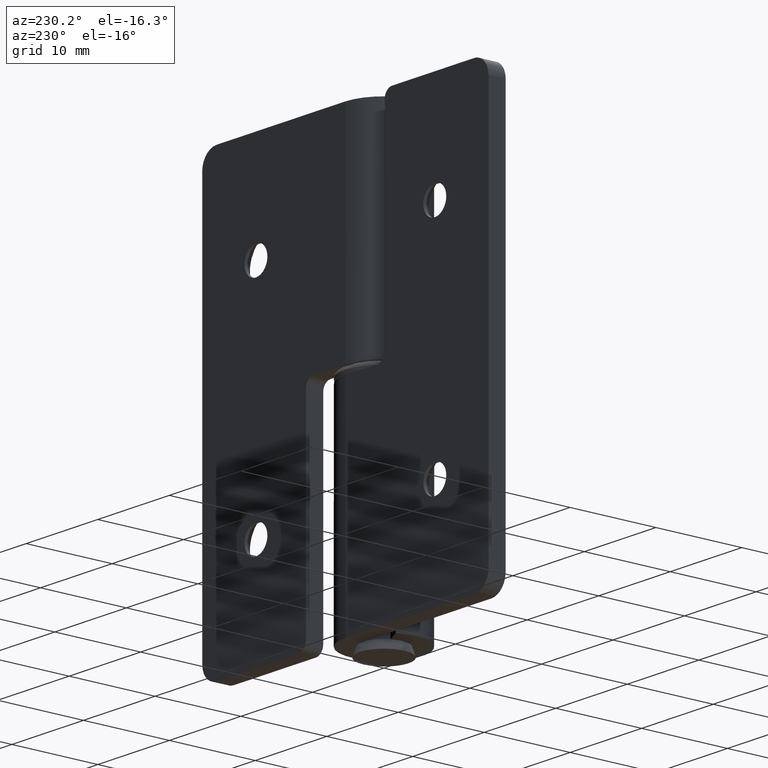
[diagram: clean part render]
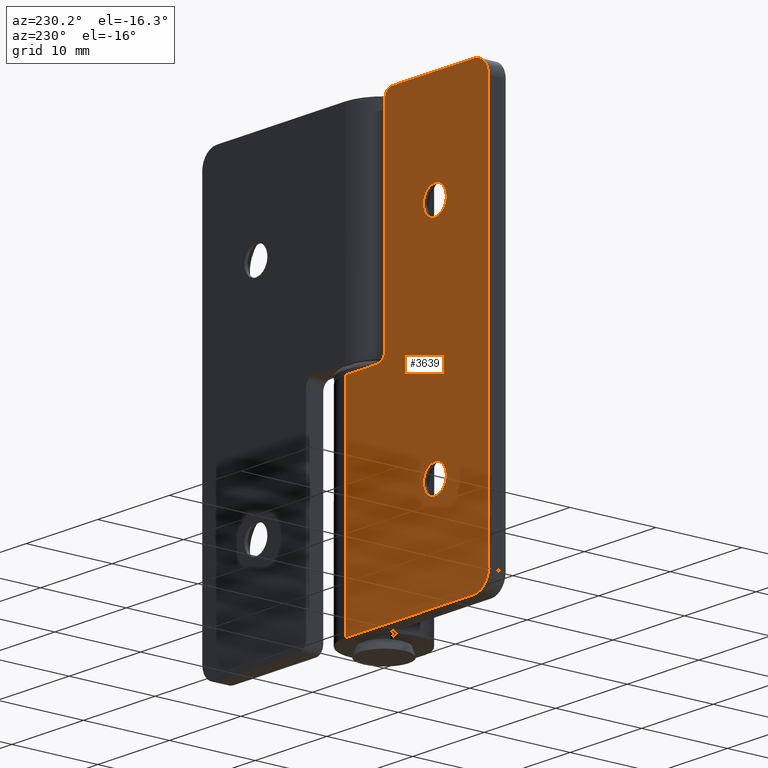
[diagram: same view with one face highlighted and labeled with its STEP entity id]
A machine part, auxiliary view. The second image highlights one B-rep face of the part: STEP entity #3639.
In plain terms, the highlighted face is a freeform B-spline surface patch.
Its self-contained STEP definition (entity closure, byte-faithful):
#2674=CARTESIAN_POINT('',(-10.902984322548001,4.499999999995415,38.097677663335922));
#2675=VERTEX_POINT('',#2674);
#2681=CARTESIAN_POINT('',(-12.500000000009100,4.499999999995415,36.400000000008973));
#2682=VERTEX_POINT('',#2681);
#2683=CARTESIAN_POINT('',(-10.902984322547995,4.499999999995416,38.097677663335915));
#2684=CARTESIAN_POINT('',(-10.900000000018061,4.499999999995415,38.048884421317929));
#2685=CARTESIAN_POINT('',(-10.900000000018069,4.499999999995415,38.0));
#2686=CARTESIAN_POINT('',(-10.900000000018068,4.499999999995415,36.400000000008966));
#2687=CARTESIAN_POINT('',(-12.500000000009100,4.499999999995415,36.400000000008973));
#2695=(BOUNDED_CURVE()B_SPLINE_CURVE(2,(#2683,#2684,#2685,#2686,#2687),.UNSPECIFIED.,.F.,.U.)B_SPLINE_CURVE_WITH_KNOTS((3,2,3),(0.239332962233250,0.250000000000000,0.500000000000000),.UNSPECIFIED.)CURVE()GEOMETRIC_REPRESENTATION_ITEM()RATIONAL_B_SPLINE_CURVE((0.976072041654518,0.987502787893168,1.0,0.707106781186548,1.0))REPRESENTATION_ITEM(''));
#2696=EDGE_CURVE('',#2675,#2682,#2695,.T.);
#2698=CARTESIAN_POINT('',(-14.097015677470200,4.499999999995415,37.902322336664092));
#2699=VERTEX_POINT('',#2698);
#2700=CARTESIAN_POINT('',(-12.500000000009100,4.499999999995415,36.400000000008973));
#2701=CARTESIAN_POINT('',(-14.005129706973579,4.499999999995415,36.400000000008973));
#2702=CARTESIAN_POINT('',(-14.097015677470203,4.499999999995415,37.902322336664085));
#2710=(BOUNDED_CURVE()B_SPLINE_CURVE(2,(#2700,#2701,#2702),.UNSPECIFIED.,.F.,.U.)B_SPLINE_CURVE_WITH_KNOTS((3,3),(0.500000000000000,0.739332962233249),.UNSPECIFIED.)CURVE()GEOMETRIC_REPRESENTATION_ITEM()RATIONAL_B_SPLINE_CURVE((1.0,0.719603993293381,0.976072041654515))REPRESENTATION_ITEM(''));
#2711=EDGE_CURVE('',#2682,#2699,#2710,.T.);
#2744=CARTESIAN_POINT('',(-12.500000000009100,4.499999999995415,39.599999999991027));
#2745=VERTEX_POINT('',#2744);
#2746=CARTESIAN_POINT('',(-14.097015677470202,4.499999999995415,37.902322336664085));
#2747=CARTESIAN_POINT('',(-14.100000000000142,4.499999999995415,37.951115578682078));
#2748=CARTESIAN_POINT('',(-14.100000000000140,4.499999999995415,38.0));
#2749=CARTESIAN_POINT('',(-14.100000000000136,4.499999999995415,39.599999999991041));
#2750=CARTESIAN_POINT('',(-12.500000000009100,4.499999999995415,39.599999999991027));
#2758=(BOUNDED_CURVE()B_SPLINE_CURVE(2,(#2746,#2747,#2748,#2749,#2750),.UNSPECIFIED.,.F.,.U.)B_SPLINE_CURVE_WITH_KNOTS((3,2,3),(0.739332962233250,0.750000000000000,1.0),.UNSPECIFIED.)CURVE()GEOMETRIC_REPRESENTATION_ITEM()RATIONAL_B_SPLINE_CURVE((0.976072041654517,0.987502787893168,1.0,0.707106781186548,1.0))REPRESENTATION_ITEM(''));
#2759=EDGE_CURVE('',#2699,#2745,#2758,.T.);
#2761=CARTESIAN_POINT('',(-12.500000000009100,4.499999999995415,39.599999999991027));
#2762=CARTESIAN_POINT('',(-10.994870293044611,4.499999999995415,39.599999999991034));
#2763=CARTESIAN_POINT('',(-10.902984322547995,4.499999999995416,38.097677663335915));
#2771=(BOUNDED_CURVE()B_SPLINE_CURVE(2,(#2761,#2762,#2763),.UNSPECIFIED.,.F.,.U.)B_SPLINE_CURVE_WITH_KNOTS((3,3),(0.0,0.239332962233250),.UNSPECIFIED.)CURVE()GEOMETRIC_REPRESENTATION_ITEM()RATIONAL_B_SPLINE_CURVE((1.0,0.719603993293379,0.976072041654518))REPRESENTATION_ITEM(''));
#2772=EDGE_CURVE('',#2745,#2675,#2771,.T.);
#3010=CARTESIAN_POINT('',(-10.902984322547921,4.499999999995415,12.097677663335910));
#3011=VERTEX_POINT('',#3010);
#3017=CARTESIAN_POINT('',(-12.500000000009020,4.499999999995415,10.400000000008960));
#3018=VERTEX_POINT('',#3017);
#3019=CARTESIAN_POINT('',(-10.902984322547923,4.499999999995415,12.097677663335913));
#3020=CARTESIAN_POINT('',(-10.900000000017991,4.499999999995415,12.048884421317931));
#3021=CARTESIAN_POINT('',(-10.900000000017990,4.499999999995415,12.0));
#3022=CARTESIAN_POINT('',(-10.900000000017986,4.499999999995415,10.400000000008964));
#3023=CARTESIAN_POINT('',(-12.500000000009020,4.499999999995415,10.400000000008960));
#3031=(BOUNDED_CURVE()B_SPLINE_CURVE(2,(#3019,#3020,#3021,#3022,#3023),.UNSPECIFIED.,.F.,.U.)B_SPLINE_CURVE_WITH_KNOTS((3,2,3),(0.239332962233251,0.250000000000000,0.500000000000000),.UNSPECIFIED.)CURVE()GEOMETRIC_REPRESENTATION_ITEM()RATIONAL_B_SPLINE_CURVE((0.976072041654518,0.987502787893168,1.0,0.707106781186548,1.0))REPRESENTATION_ITEM(''));
#3032=EDGE_CURVE('',#3011,#3018,#3031,.T.);
#3034=CARTESIAN_POINT('',(-14.097015677470131,4.499999999995415,11.902322336664090));
#3035=VERTEX_POINT('',#3034);
#3036=CARTESIAN_POINT('',(-12.500000000009020,4.499999999995415,10.400000000008960));
#3037=CARTESIAN_POINT('',(-14.005129706973516,4.499999999995415,10.400000000008964));
#3038=CARTESIAN_POINT('',(-14.097015677470132,4.499999999995415,11.902322336664099));
#3046=(BOUNDED_CURVE()B_SPLINE_CURVE(2,(#3036,#3037,#3038),.UNSPECIFIED.,.F.,.U.)B_SPLINE_CURVE_WITH_KNOTS((3,3),(0.500000000000000,0.739332962233251),.UNSPECIFIED.)CURVE()GEOMETRIC_REPRESENTATION_ITEM()RATIONAL_B_SPLINE_CURVE((1.0,0.719603993293379,0.976072041654519))REPRESENTATION_ITEM(''));
#3047=EDGE_CURVE('',#3018,#3035,#3046,.T.);
#3080=CARTESIAN_POINT('',(-12.500000000009020,4.499999999995415,13.599999999991040));
#3081=VERTEX_POINT('',#3080);
#3082=CARTESIAN_POINT('',(-14.097015677470132,4.499999999995415,11.902322336664099));
#3083=CARTESIAN_POINT('',(-14.100000000000060,4.499999999995416,11.951115578682074));
#3084=CARTESIAN_POINT('',(-14.100000000000060,4.499999999995415,12.0));
#3085=CARTESIAN_POINT('',(-14.100000000000056,4.499999999995415,13.599999999991036));
#3086=CARTESIAN_POINT('',(-12.500000000009020,4.499999999995415,13.599999999991040));
#3094=(BOUNDED_CURVE()B_SPLINE_CURVE(2,(#3082,#3083,#3084,#3085,#3086),.UNSPECIFIED.,.F.,.U.)B_SPLINE_CURVE_WITH_KNOTS((3,2,3),(0.739332962233251,0.750000000000000,1.0),.UNSPECIFIED.)CURVE()GEOMETRIC_REPRESENTATION_ITEM()RATIONAL_B_SPLINE_CURVE((0.976072041654519,0.987502787893169,1.0,0.707106781186548,1.0))REPRESENTATION_ITEM(''));
#3095=EDGE_CURVE('',#3035,#3081,#3094,.T.);
#3097=CARTESIAN_POINT('',(-12.500000000009020,4.499999999995415,13.599999999991040));
#3098=CARTESIAN_POINT('',(-10.994870293044533,4.499999999995415,13.599999999991036));
#3099=CARTESIAN_POINT('',(-10.902984322547923,4.499999999995416,12.097677663335912));
#3107=(BOUNDED_CURVE()B_SPLINE_CURVE(2,(#3097,#3098,#3099),.UNSPECIFIED.,.F.,.U.)B_SPLINE_CURVE_WITH_KNOTS((3,3),(0.0,0.239332962233251),.UNSPECIFIED.)CURVE()GEOMETRIC_REPRESENTATION_ITEM()RATIONAL_B_SPLINE_CURVE((1.0,0.719603993293379,0.976072041654518))REPRESENTATION_ITEM(''));
#3108=EDGE_CURVE('',#3081,#3011,#3107,.T.);
#3146=CARTESIAN_POINT('',(-5.500000000000000,4.499999999999920,49.0));
#3147=VERTEX_POINT('',#3146);
#3153=CARTESIAN_POINT('',(-6.500000000000000,4.499999999997845,50.0));
#3154=VERTEX_POINT('',#3153);
#3155=CARTESIAN_POINT('',(-6.500000000000000,4.499999999997845,50.0));
#3156=CARTESIAN_POINT('',(-5.500000000000001,4.499999999998166,50.0));
#3157=CARTESIAN_POINT('',(-5.500000000000000,4.499999999998165,49.0));
#3165=(BOUNDED_CURVE()B_SPLINE_CURVE(2,(#3155,#3156,#3157),.UNSPECIFIED.,.F.,.U.)CURVE()GEOMETRIC_REPRESENTATION_ITEM()QUASI_UNIFORM_CURVE()RATIONAL_B_SPLINE_CURVE((1.0,0.707106781186548,1.0))REPRESENTATION_ITEM(''));
#3166=EDGE_CURVE('',#3154,#3147,#3165,.T.);
#3207=CARTESIAN_POINT('',(-4.500000000000000,4.499999999999920,24.500000000000000));
#3208=VERTEX_POINT('',#3207);
#3214=CARTESIAN_POINT('',(-5.500000000000000,4.499999999999920,25.500000000000000));
#3215=VERTEX_POINT('',#3214);
#3216=CARTESIAN_POINT('',(-5.500000000000000,4.499999999999920,25.500000000000000));
#3217=CARTESIAN_POINT('',(-5.500000000000001,4.500000000006960,24.500000000000004));
#3218=CARTESIAN_POINT('',(-4.500000000000000,4.500000000007280,24.500000000000000));
#3226=(BOUNDED_CURVE()B_SPLINE_CURVE(2,(#3216,#3217,#3218),.UNSPECIFIED.,.F.,.U.)CURVE()GEOMETRIC_REPRESENTATION_ITEM()QUASI_UNIFORM_CURVE()RATIONAL_B_SPLINE_CURVE((1.0,0.707106781186548,1.0))REPRESENTATION_ITEM(''));
#3227=EDGE_CURVE('',#3215,#3208,#3226,.T.);
#3251=CARTESIAN_POINT('',(-19.999999999979899,4.499999999993525,48.0));
#3252=VERTEX_POINT('',#3251);
#3253=CARTESIAN_POINT('',(-18.000000000023601,4.499999999994165,50.0));
#3254=VERTEX_POINT('',#3253);
#3255=CARTESIAN_POINT('',(-19.999999999979899,4.499999999993525,48.0));
#3256=CARTESIAN_POINT('',(-20.000000000023601,4.499999999993526,50.0));
#3257=CARTESIAN_POINT('',(-18.000000000023601,4.499999999994165,50.0));
#3265=(BOUNDED_CURVE()B_SPLINE_CURVE(2,(#3255,#3256,#3257),.UNSPECIFIED.,.F.,.U.)CURVE()GEOMETRIC_REPRESENTATION_ITEM()QUASI_UNIFORM_CURVE()RATIONAL_B_SPLINE_CURVE((1.0,0.707106781186548,1.0))REPRESENTATION_ITEM(''));
#3266=EDGE_CURVE('',#3252,#3254,#3265,.T.);
#3312=CARTESIAN_POINT('',(-18.000000000023601,4.499999999994165,0.0));
#3313=VERTEX_POINT('',#3312);
#3314=CARTESIAN_POINT('',(-19.999999999979899,4.499999999993525,2.0));
#3315=VERTEX_POINT('',#3314);
#3316=CARTESIAN_POINT('',(-18.000000000023601,4.499999999994165,0.0));
#3317=CARTESIAN_POINT('',(-20.000000000023601,4.499999999993526,0.0));
#3318=CARTESIAN_POINT('',(-20.000000000023601,4.499999999993526,2.0));
#3326=(BOUNDED_CURVE()B_SPLINE_CURVE(2,(#3316,#3317,#3318),.UNSPECIFIED.,.F.,.U.)CURVE()GEOMETRIC_REPRESENTATION_ITEM()QUASI_UNIFORM_CURVE()RATIONAL_B_SPLINE_CURVE((1.0,0.707106781186548,1.0))REPRESENTATION_ITEM(''));
#3327=EDGE_CURVE('',#3313,#3315,#3326,.T.);
#3370=CARTESIAN_POINT('',(-5.500000000000000,4.499999999999920,25.500000000000000));
#3371=CARTESIAN_POINT('',(-5.500000000000000,4.499999999999920,49.0));
#3372=QUASI_UNIFORM_CURVE('',1,(#3370,#3371),.UNSPECIFIED.,.F.,.U.);
#3373=EDGE_CURVE('',#3215,#3147,#3372,.T.);
#3384=CARTESIAN_POINT('',(-2.358617E-011,4.499999999999920,24.500000000000000));
#3385=VERTEX_POINT('',#3384);
#3386=CARTESIAN_POINT('',(-2.358617E-011,4.499999999999920,24.500000000000000));
#3387=CARTESIAN_POINT('',(-4.500000000000000,4.499999999999920,24.500000000000000));
#3388=QUASI_UNIFORM_CURVE('',1,(#3386,#3387),.UNSPECIFIED.,.F.,.U.);
#3389=EDGE_CURVE('',#3385,#3208,#3388,.T.);
#3493=CARTESIAN_POINT('',(-2.358575E-011,4.499999999999949,0.0));
#3494=VERTEX_POINT('',#3493);
#3495=CARTESIAN_POINT('',(-2.358575E-011,4.499999999999949,0.0));
#3496=CARTESIAN_POINT('',(-18.000000000023601,4.499999999994165,0.0));
#3497=QUASI_UNIFORM_CURVE('',1,(#3495,#3496),.UNSPECIFIED.,.F.,.U.);
#3498=EDGE_CURVE('',#3494,#3313,#3497,.T.);
#3593=CARTESIAN_POINT('',(-6.500000000000000,4.499999999997845,50.0));
#3594=CARTESIAN_POINT('',(-18.000000000023601,4.499999999994165,50.0));
#3595=QUASI_UNIFORM_CURVE('',1,(#3593,#3594),.UNSPECIFIED.,.F.,.U.);
#3596=EDGE_CURVE('',#3154,#3254,#3595,.T.);
#3602=CARTESIAN_POINT('',(-20.998999961213830,4.499999999993205,-2.497499903090299));
#3603=CARTESIAN_POINT('',(0.999000497652153,4.500000000000238,-2.497499903090299));
#3604=CARTESIAN_POINT('',(-20.998999961213830,4.499999999993205,52.497501244194808));
#3605=CARTESIAN_POINT('',(0.999000497652153,4.500000000000238,52.497501244194808));
#3606=B_SPLINE_SURFACE_WITH_KNOTS('',1,1,((#3602,#3604),(#3603,#3605)),.UNSPECIFIED.,.F.,.F.,.U.,(2,2),(2,2),(0.0,21.998000458865992),(0.0,54.995001147285109),.UNSPECIFIED.);
#3607=ORIENTED_EDGE('',*,*,#3596,.F.);
#3608=ORIENTED_EDGE('',*,*,#3166,.T.);
#3609=ORIENTED_EDGE('',*,*,#3373,.F.);
#3610=ORIENTED_EDGE('',*,*,#3227,.T.);
#3611=ORIENTED_EDGE('',*,*,#3389,.F.);
#3612=CARTESIAN_POINT('',(-2.358617E-011,4.499999999999920,24.500000000000000));
#3613=CARTESIAN_POINT('',(-2.358575E-011,4.499999999999949,0.0));
#3614=QUASI_UNIFORM_CURVE('',1,(#3612,#3613),.UNSPECIFIED.,.F.,.U.);
#3615=EDGE_CURVE('',#3385,#3494,#3614,.T.);
#3616=ORIENTED_EDGE('',*,*,#3615,.T.);
#3617=ORIENTED_EDGE('',*,*,#3498,.T.);
#3618=ORIENTED_EDGE('',*,*,#3327,.T.);
#3619=CARTESIAN_POINT('',(-19.999999999979899,4.499999999993525,48.0));
#3620=CARTESIAN_POINT('',(-19.999999999979899,4.499999999993525,2.0));
#3621=QUASI_UNIFORM_CURVE('',1,(#3619,#3620),.UNSPECIFIED.,.F.,.U.);
#3622=EDGE_CURVE('',#3252,#3315,#3621,.T.);
#3623=ORIENTED_EDGE('',*,*,#3622,.F.);
#3624=ORIENTED_EDGE('',*,*,#3266,.T.);
#3625=EDGE_LOOP('',(#3607,#3608,#3609,#3610,#3611,#3616,#3617,#3618,#3623,#3624));
#3626=FACE_OUTER_BOUND('',#3625,.T.);
#3627=ORIENTED_EDGE('',*,*,#3047,.F.);
#3628=ORIENTED_EDGE('',*,*,#3032,.F.);
#3629=ORIENTED_EDGE('',*,*,#3108,.F.);
#3630=ORIENTED_EDGE('',*,*,#3095,.F.);
#3631=EDGE_LOOP('',(#3627,#3628,#3629,#3630));
#3632=FACE_BOUND('',#3631,.T.);
#3633=ORIENTED_EDGE('',*,*,#2711,.F.);
#3634=ORIENTED_EDGE('',*,*,#2696,.F.);
#3635=ORIENTED_EDGE('',*,*,#2772,.F.);
#3636=ORIENTED_EDGE('',*,*,#2759,.F.);
#3637=EDGE_LOOP('',(#3633,#3634,#3635,#3636));
#3638=FACE_BOUND('',#3637,.T.);
#3639=ADVANCED_FACE('',(#3626,#3632,#3638),#3606,.F.);